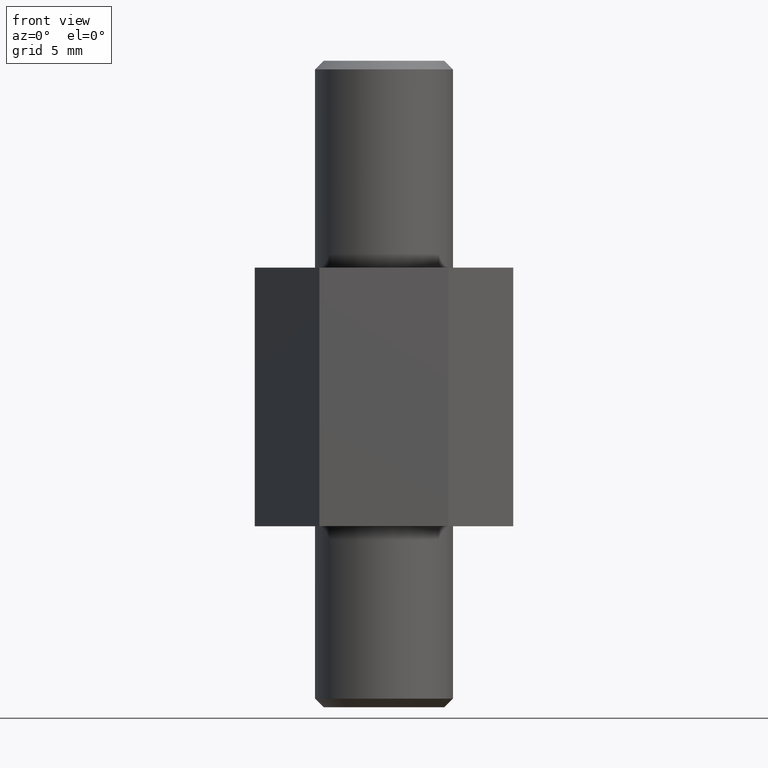
[diagram: clean part render]
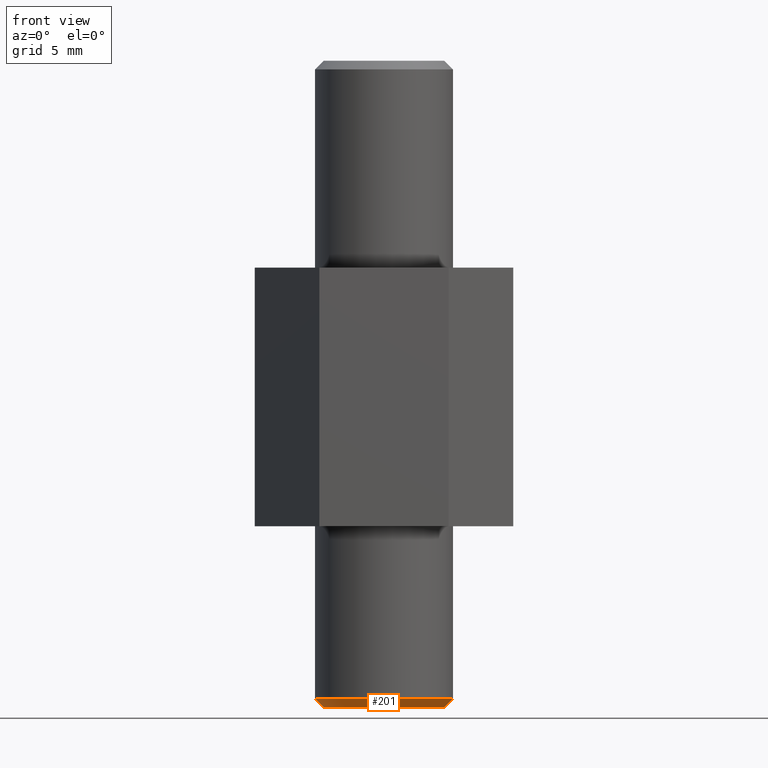
[diagram: same view with one face highlighted and labeled with its STEP entity id]
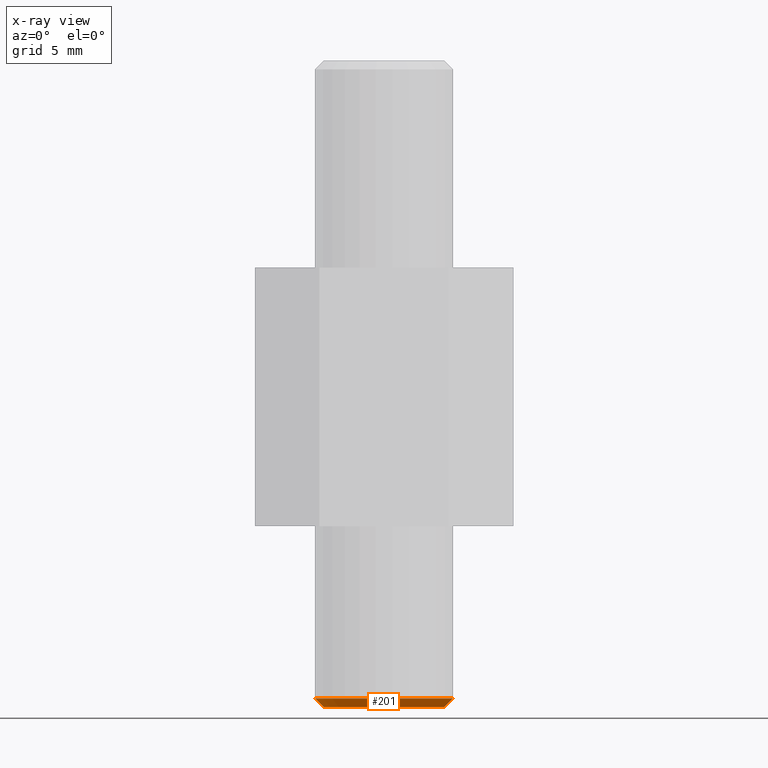
[diagram: x-ray of the same camera — body ghosted, the highlighted face saturated]
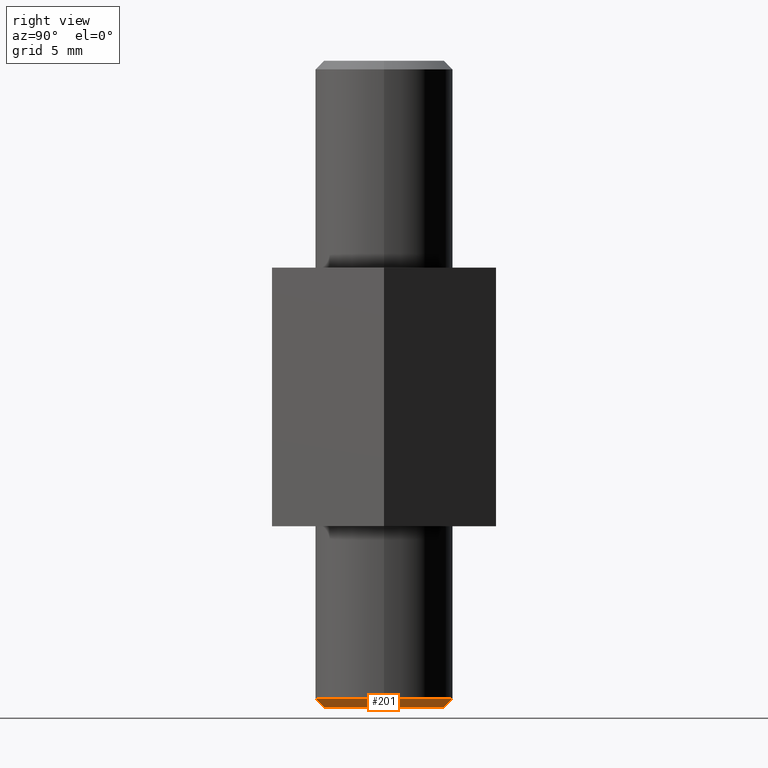
[diagram: same view with one face highlighted and labeled with its STEP entity id]
A machine part, front view. The second image highlights one B-rep face of the part: STEP entity #201.
The next image is the same camera in x-ray: the body ghosted, the highlighted face saturated — about 0% of this face is hidden behind the body in this view.
A second angle (right view) of the same face is appended — the face is thin or edge-on in the first view.
In plain terms, the highlighted conical surface has half-angle 45 deg.
Its self-contained STEP definition (entity closure, byte-faithful):
#63=FACE_BOUND('',#84,.T.);
#69=FACE_OUTER_BOUND('',#83,.T.);
#83=EDGE_LOOP('',(#151));
#84=EDGE_LOOP('',(#152));
#103=CIRCLE('',#218,4.);
#104=CIRCLE('',#219,3.5);
#109=VERTEX_POINT('',#299);
#110=VERTEX_POINT('',#301);
#127=EDGE_CURVE('',#109,#109,#103,.T.);
#128=EDGE_CURVE('',#110,#110,#104,.T.);
#151=ORIENTED_EDGE('',*,*,#127,.T.);
#152=ORIENTED_EDGE('',*,*,#128,.T.);
#199=CONICAL_SURFACE('',#217,3.75,45.);
#201=ADVANCED_FACE('',(#69,#63),#199,.T.);
#217=AXIS2_PLACEMENT_3D('',#298,#239,#240);
#218=AXIS2_PLACEMENT_3D('',#300,#241,#242);
#219=AXIS2_PLACEMENT_3D('',#302,#243,#244);
#239=DIRECTION('center_axis',(0.,0.,1.));
#240=DIRECTION('ref_axis',(-1.,0.,0.));
#241=DIRECTION('center_axis',(0.,0.,-1.));
#242=DIRECTION('ref_axis',(-1.,0.,0.));
#243=DIRECTION('center_axis',(0.,0.,1.));
#244=DIRECTION('ref_axis',(-1.,0.,0.));
#298=CARTESIAN_POINT('Origin',(0.,0.,-5.));
#299=CARTESIAN_POINT('',(4.,-4.89858719658941E-16,-4.75));
#300=CARTESIAN_POINT('Origin',(0.,0.,-4.75));
#301=CARTESIAN_POINT('',(3.5,4.28626379701574E-16,-5.25));
#302=CARTESIAN_POINT('Origin',(0.,0.,-5.25));